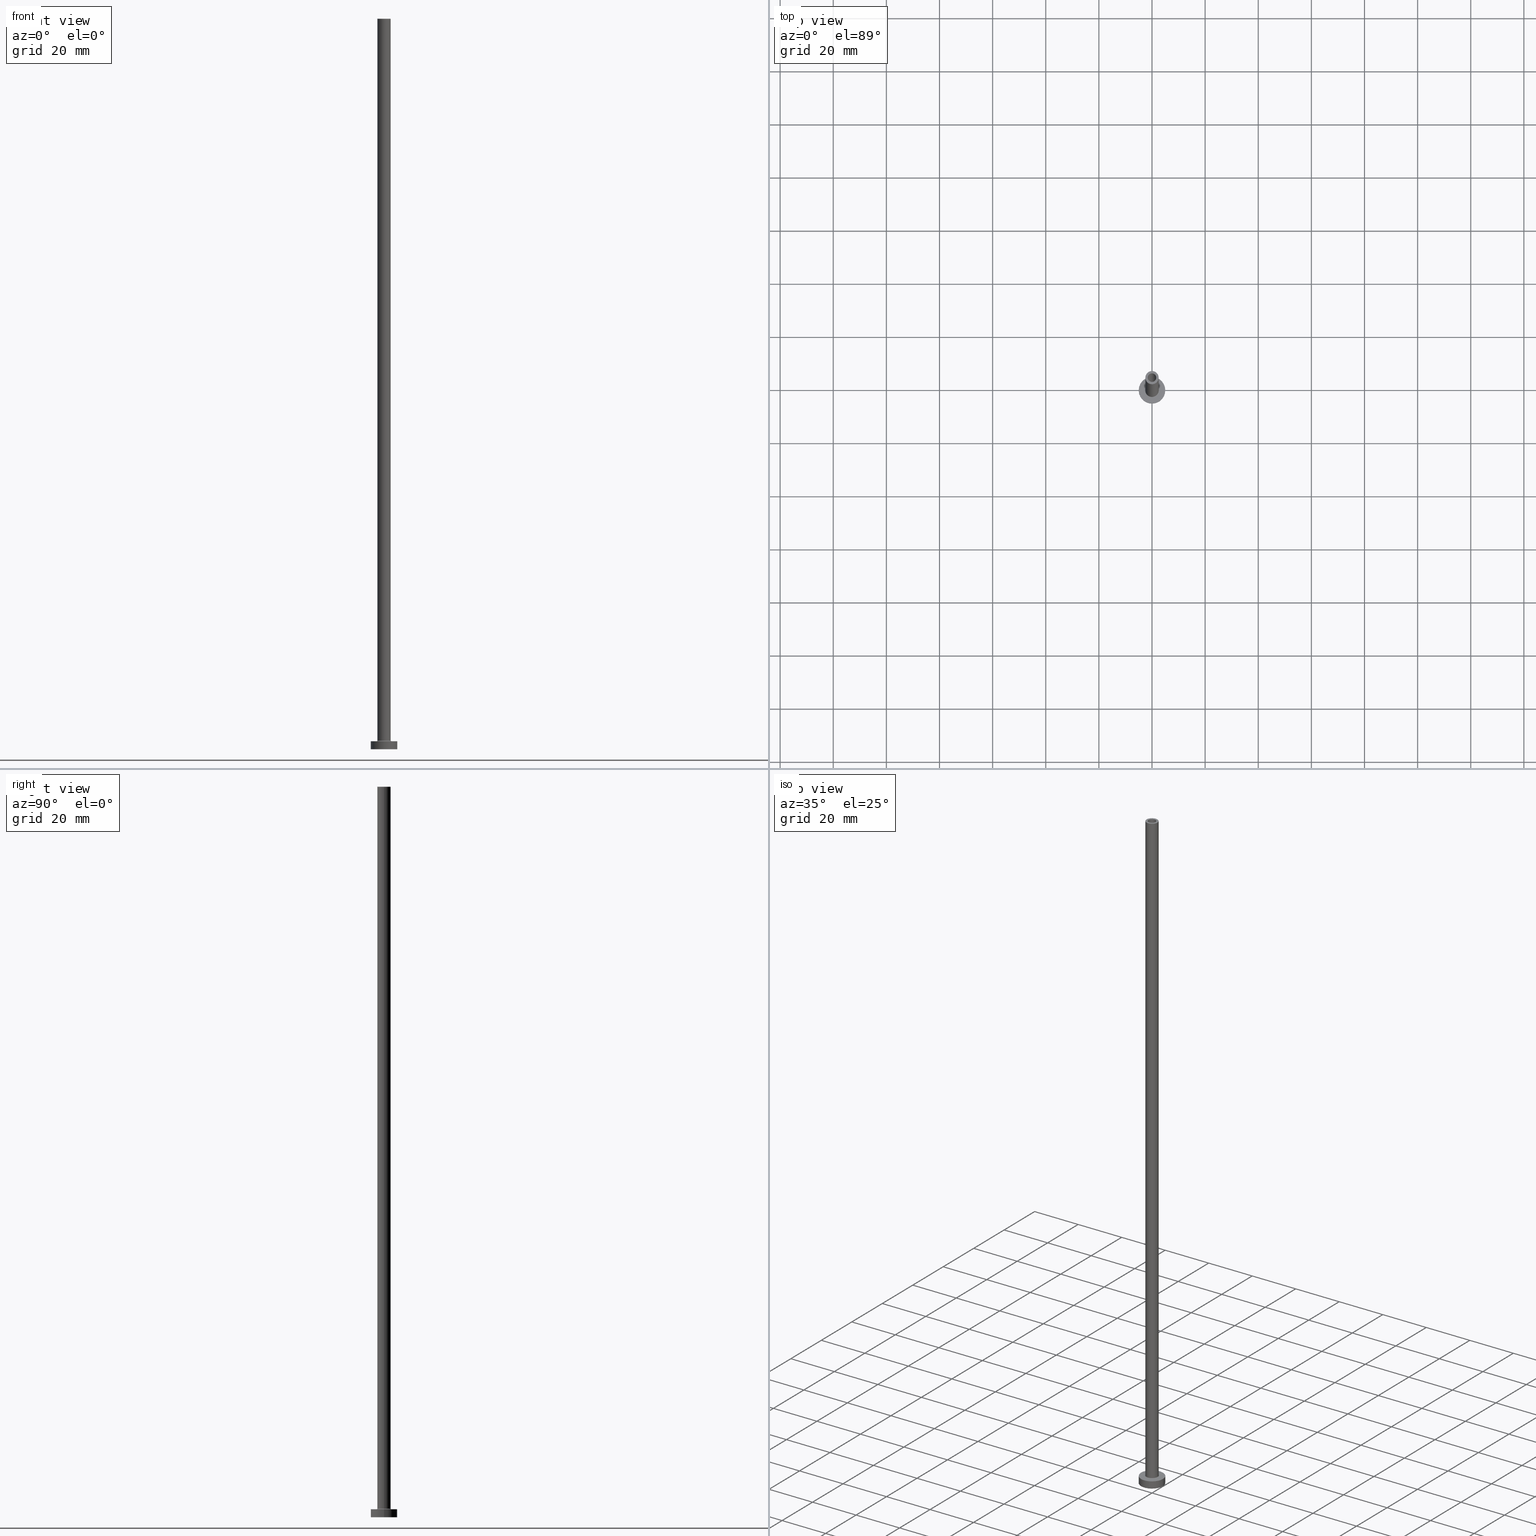
[diagram: canonical four-view strip — front | top / right | iso, engineering-drawing reading convention]
A machine part, canonical four-view strip (front | top / right | iso — engineering-drawing reading convention). The complete STEP part file that produces these views, byte-faithful:
ISO-10303-21;
HEADER;
FILE_DESCRIPTION (( 'STEP AP203' ),
    '1' );
FILE_NAME ('d8c4.STEP',
    '2023-02-13T17:55:53',
    ( '' ),
    ( '' ),
    'SwSTEP 2.0',
    'SolidWorks 2019',
    '' );
FILE_SCHEMA (( 'CONFIG_CONTROL_DESIGN' ));
ENDSEC;

DATA;
#1 = ORIENTED_EDGE ( 'NONE', *, *, #213, .T. ) ;
#2 = LINE ( 'NONE', #153, #8 ) ;
#3 = EDGE_LOOP ( 'NONE', ( #435, #387 ) ) ;
#4 = CIRCLE ( 'NONE', #334, 2.799999999999999822 ) ;
#5 = CC_DESIGN_DATE_AND_TIME_ASSIGNMENT ( #384, #97, ( #174 ) ) ;
#6 = DIRECTION ( 'NONE',  ( -0.000000000000000000, -0.000000000000000000, -1.000000000000000000 ) ) ;
#7 = ORIENTED_EDGE ( 'NONE', *, *, #382, .F. ) ;
#8 = VECTOR ( 'NONE', #118, 1000.000000000000000 ) ;
#9 = EDGE_CURVE ( 'NONE', #297, #353, #235, .T. ) ;
#10 = ORIENTED_EDGE ( 'NONE', *, *, #416, .F. ) ;
#11 = FACE_OUTER_BOUND ( 'NONE', #217, .T. ) ;
#12 = DIRECTION ( 'NONE',  ( 0.000000000000000000, 0.000000000000000000, 1.000000000000000000 ) ) ;
#13 = CARTESIAN_POINT ( 'NONE',  ( 1.600000000000000089, 1.959434878635764737E-16, 275.0000000000000000 ) ) ;
#14 = DATE_TIME_ROLE ( 'classification_date' ) ;
#15 = ADVANCED_FACE ( 'NONE', ( #11 ), #199, .F. ) ;
#16 = DATE_AND_TIME ( #377, #178 ) ;
#17 = AXIS2_PLACEMENT_3D ( 'NONE', #146, #74, #114 ) ;
#18 = CIRCLE ( 'NONE', #403, 5.000000000000000000 ) ;
#19 = CARTESIAN_POINT ( 'NONE',  ( 0.000000000000000000, 0.000000000000000000, 275.0000000000000000 ) ) ;
#20 = DIRECTION ( 'NONE',  ( -1.000000000000000000, 0.000000000000000000, 0.000000000000000000 ) ) ;
#21 = DIRECTION ( 'NONE',  ( 1.224646799147353207E-16, 1.000000000000000000, -0.000000000000000000 ) ) ;
#22 = CARTESIAN_POINT ( 'NONE',  ( -5.000000000000000000, 0.000000000000000000, 3.000000000000000000 ) ) ;
#23 =( GEOMETRIC_REPRESENTATION_CONTEXT ( 3 ) GLOBAL_UNCERTAINTY_ASSIGNED_CONTEXT ( ( #367 ) ) GLOBAL_UNIT_ASSIGNED_CONTEXT ( ( #197, #408, #301 ) ) REPRESENTATION_CONTEXT ( 'NONE', 'WORKASPACE' ) );
#24 = FACE_BOUND ( 'NONE', #3, .T. ) ;
#25 = ORIENTED_EDGE ( 'NONE', *, *, #327, .T. ) ;
#26 = VERTEX_POINT ( 'NONE', #191 ) ;
#27 = EDGE_CURVE ( 'NONE', #28, #398, #391, .T. ) ;
#28 = VERTEX_POINT ( 'NONE', #190 ) ;
#29 = CIRCLE ( 'NONE', #386, 1.600000000000000089 ) ;
#30 = DATE_AND_TIME ( #189, #63 ) ;
#31 = DIRECTION ( 'NONE',  ( -0.000000000000000000, -0.000000000000000000, -1.000000000000000000 ) ) ;
#32 = ORIENTED_EDGE ( 'NONE', *, *, #308, .T. ) ;
#33 = FACE_OUTER_BOUND ( 'NONE', #147, .T. ) ;
#34 = ADVANCED_FACE ( 'NONE', ( #394, #340 ), #180, .T. ) ;
#35 = ORIENTED_EDGE ( 'NONE', *, *, #213, .F. ) ;
#36 = ORIENTED_EDGE ( 'NONE', *, *, #27, .F. ) ;
#37 = ORIENTED_EDGE ( 'NONE', *, *, #248, .F. ) ;
#38 = AXIS2_PLACEMENT_3D ( 'NONE', #45, #194, #233 ) ;
#39 = DIRECTION ( 'NONE',  ( 0.000000000000000000, 0.000000000000000000, 1.000000000000000000 ) ) ;
#40 = CIRCLE ( 'NONE', #457, 5.000000000000000000 ) ;
#41 = LINE ( 'NONE', #120, #268 ) ;
#42 = ORIENTED_EDGE ( 'NONE', *, *, #144, .T. ) ;
#43 = DIRECTION ( 'NONE',  ( 1.000000000000000000, 0.000000000000000000, 0.000000000000000000 ) ) ;
#44 = EDGE_LOOP ( 'NONE', ( #262, #356, #1, #383 ) ) ;
#45 = CARTESIAN_POINT ( 'NONE',  ( 0.000000000000000000, 0.000000000000000000, 275.0000000000000000 ) ) ;
#46 = DIRECTION ( 'NONE',  ( -1.000000000000000000, 0.000000000000000000, 0.000000000000000000 ) ) ;
#47 = DIRECTION ( 'NONE',  ( -0.000000000000000000, -0.000000000000000000, -1.000000000000000000 ) ) ;
#48 = DIRECTION ( 'NONE',  ( 1.000000000000000000, 0.000000000000000000, 0.000000000000000000 ) ) ;
#49 = APPROVAL_STATUS ( 'not_yet_approved' ) ;
#50 = FACE_OUTER_BOUND ( 'NONE', #129, .T. ) ;
#51 = EDGE_CURVE ( 'NONE', #110, #392, #168, .T. ) ;
#52 = DIRECTION ( 'NONE',  ( 1.000000000000000000, 0.000000000000000000, 0.000000000000000000 ) ) ;
#53 = ORIENTED_EDGE ( 'NONE', *, *, #454, .F. ) ;
#54 = AXIS2_PLACEMENT_3D ( 'NONE', #229, #39, #152 ) ;
#55 = CIRCLE ( 'NONE', #123, 2.500000000000000000 ) ;
#56 = SECURITY_CLASSIFICATION ( '', '', #72 ) ;
#57 = CALENDAR_DATE ( 2023, 13, 2 ) ;
#58 = ADVANCED_FACE ( 'NONE', ( #73 ), #267, .F. ) ;
#59 = VERTEX_POINT ( 'NONE', #109 ) ;
#60 = DIRECTION ( 'NONE',  ( 1.000000000000000000, 0.000000000000000000, -0.000000000000000000 ) ) ;
#61 = PERSON_AND_ORGANIZATION ( #211, #381 ) ;
#62 = CARTESIAN_POINT ( 'NONE',  ( -2.500000000000000000, 0.000000000000000000, 275.0000000000000000 ) ) ;
#63 = LOCAL_TIME ( 18, 55, 53.00000000000000000, #112 ) ;
#64 = DIRECTION ( 'NONE',  ( 0.000000000000000000, 0.000000000000000000, -1.000000000000000000 ) ) ;
#65 = AXIS2_PLACEMENT_3D ( 'NONE', #329, #399, #430 ) ;
#66 = DIRECTION ( 'NONE',  ( -1.000000000000000000, 0.000000000000000000, 0.000000000000000000 ) ) ;
#67 = AXIS2_PLACEMENT_3D ( 'NONE', #261, #31, #226 ) ;
#68 = EDGE_LOOP ( 'NONE', ( #79, #193 ) ) ;
#69 = EDGE_LOOP ( 'NONE', ( #298, #404 ) ) ;
#70 = EDGE_CURVE ( 'NONE', #181, #149, #411, .T. ) ;
#71 = ORIENTED_EDGE ( 'NONE', *, *, #389, .F. ) ;
#72 = SECURITY_CLASSIFICATION_LEVEL ( 'unclassified' ) ;
#73 = FACE_OUTER_BOUND ( 'NONE', #320, .T. ) ;
#74 = DIRECTION ( 'NONE',  ( 0.000000000000000000, 0.000000000000000000, 1.000000000000000000 ) ) ;
#75 = ORIENTED_EDGE ( 'NONE', *, *, #198, .T. ) ;
#76 = DIRECTION ( 'NONE',  ( -0.000000000000000000, -0.000000000000000000, -1.000000000000000000 ) ) ;
#77 = TOROIDAL_SURFACE ( 'NONE', #274, 2.799999999999999822, 0.2999999999999999889 ) ;
#78 = DIRECTION ( 'NONE',  ( -0.000000000000000000, -0.000000000000000000, -1.000000000000000000 ) ) ;
#79 = ORIENTED_EDGE ( 'NONE', *, *, #70, .F. ) ;
#80 = EDGE_CURVE ( 'NONE', #26, #388, #2, .T. ) ;
#81 = DIRECTION ( 'NONE',  ( 0.000000000000000000, 0.000000000000000000, -1.000000000000000000 ) ) ;
#82 = DIRECTION ( 'NONE',  ( 1.000000000000000000, 0.000000000000000000, 0.000000000000000000 ) ) ;
#83 = ORIENTED_EDGE ( 'NONE', *, *, #51, .T. ) ;
#84 = PERSON_AND_ORGANIZATION ( #211, #381 ) ;
#85 = TOROIDAL_SURFACE ( 'NONE', #409, 2.799999999999999822, 0.2999999999999999889 ) ;
#86 = CARTESIAN_POINT ( 'NONE',  ( -1.600000000000000089, 0.000000000000000000, 275.0000000000000000 ) ) ;
#87 = SHAPE_DEFINITION_REPRESENTATION ( #355, #312 ) ;
#88 = PRODUCT_DEFINITION_FORMATION_WITH_SPECIFIED_SOURCE ( 'LIBOVOLN�', '', #219, .NOT_KNOWN. ) ;
#89 = EDGE_CURVE ( 'NONE', #366, #59, #257, .T. ) ;
#90 = DIRECTION ( 'NONE',  ( 1.000000000000000000, 0.000000000000000000, 0.000000000000000000 ) ) ;
#91 = CARTESIAN_POINT ( 'NONE',  ( 0.000000000000000000, 0.000000000000000000, 230.0000000000000284 ) ) ;
#92 = EDGE_CURVE ( 'NONE', #421, #176, #417, .T. ) ;
#93 = CIRCLE ( 'NONE', #187, 1.600000000000000089 ) ;
#94 = APPROVAL_PERSON_ORGANIZATION ( #84, #369, #271 ) ;
#95 = CARTESIAN_POINT ( 'NONE',  ( 2.500000000000000000, 3.061616997868383141E-16, 275.0000000000000000 ) ) ;
#96 = EDGE_LOOP ( 'NONE', ( #75, #42 ) ) ;
#97 = DATE_TIME_ROLE ( 'creation_date' ) ;
#98 = PLANE ( 'NONE',  #445 ) ;
#99 = CLOSED_SHELL ( 'NONE', ( #459, #15, #177, #188, #276, #108, #303, #375, #127, #34, #121, #58, #354, #208 ) ) ;
#100 = CARTESIAN_POINT ( 'NONE',  ( 0.000000000000000000, 0.000000000000000000, 3.000000000000000000 ) ) ;
#101 = ORIENTED_EDGE ( 'NONE', *, *, #448, .F. ) ;
#102 = LINE ( 'NONE', #254, #162 ) ;
#103 = CC_DESIGN_PERSON_AND_ORGANIZATION_ASSIGNMENT ( #143, #179, ( #88 ) ) ;
#104 = APPROVAL_PERSON_ORGANIZATION ( #61, #227, #283 ) ;
#105 = ORIENTED_EDGE ( 'NONE', *, *, #385, .T. ) ;
#106 = ORIENTED_EDGE ( 'NONE', *, *, #138, .T. ) ;
#107 = ORIENTED_EDGE ( 'NONE', *, *, #361, .F. ) ;
#108 = ADVANCED_FACE ( 'NONE', ( #150 ), #332, .T. ) ;
#109 = CARTESIAN_POINT ( 'NONE',  ( -2.500000000000000000, 0.000000000000000000, 3.300000000000025135 ) ) ;
#110 = VERTEX_POINT ( 'NONE', #299 ) ;
#111 = ORIENTED_EDGE ( 'NONE', *, *, #70, .T. ) ;
#112 = COORDINATED_UNIVERSAL_TIME_OFFSET ( 1, 0, .AHEAD. ) ;
#113 = DIRECTION ( 'NONE',  ( 1.000000000000000000, 0.000000000000000000, 0.000000000000000000 ) ) ;
#114 = DIRECTION ( 'NONE',  ( 1.000000000000000000, 0.000000000000000000, 0.000000000000000000 ) ) ;
#115 = EDGE_LOOP ( 'NONE', ( #117, #370, #214, #36 ) ) ;
#116 = CARTESIAN_POINT ( 'NONE',  ( 0.000000000000000000, 0.000000000000000000, 3.000000000000000000 ) ) ;
#117 = ORIENTED_EDGE ( 'NONE', *, *, #308, .F. ) ;
#118 = DIRECTION ( 'NONE',  ( -0.000000000000000000, -0.000000000000000000, -1.000000000000000000 ) ) ;
#119 = VECTOR ( 'NONE', #47, 1000.000000000000000 ) ;
#120 = CARTESIAN_POINT ( 'NONE',  ( 2.500000000000000000, 3.061616997868383141E-16, 275.0000000000000000 ) ) ;
#121 = ADVANCED_FACE ( 'NONE', ( #33 ), #85, .F. ) ;
#122 = ORIENTED_EDGE ( 'NONE', *, *, #448, .T. ) ;
#123 = AXIS2_PLACEMENT_3D ( 'NONE', #167, #314, #281 ) ;
#124 = CC_DESIGN_APPROVAL ( #227, ( #88 ) ) ;
#125 = CARTESIAN_POINT ( 'NONE',  ( -1.750000000000000000, 0.000000000000000000, 0.000000000000000000 ) ) ;
#126 = APPROVAL_STATUS ( 'not_yet_approved' ) ;
#127 = ADVANCED_FACE ( 'NONE', ( #295 ), #232, .T. ) ;
#128 = APPLICATION_PROTOCOL_DEFINITION ( 'international standard', 'config_control_design', 1994, #204 ) ;
#129 = EDGE_LOOP ( 'NONE', ( #71, #395, #37, #266 ) ) ;
#130 = CARTESIAN_POINT ( 'NONE',  ( 0.000000000000000000, 0.000000000000000000, 3.000000000000000000 ) ) ;
#131 = PERSON_AND_ORGANIZATION_ROLE ( 'creator' ) ;
#132 = FACE_OUTER_BOUND ( 'NONE', #231, .T. ) ;
#133 = CARTESIAN_POINT ( 'NONE',  ( 0.000000000000000000, 0.000000000000000000, 3.000000000000000000 ) ) ;
#134 = VECTOR ( 'NONE', #202, 1000.000000000000000 ) ;
#135 = CIRCLE ( 'NONE', #286, 1.750000000000000000 ) ;
#136 = DIRECTION ( 'NONE',  ( 1.000000000000000000, 0.000000000000000000, 0.000000000000000000 ) ) ;
#137 = CARTESIAN_POINT ( 'NONE',  ( 0.000000000000000000, 0.000000000000000000, 0.000000000000000000 ) ) ;
#138 = EDGE_CURVE ( 'NONE', #353, #388, #402, .T. ) ;
#139 = CARTESIAN_POINT ( 'NONE',  ( 0.000000000000000000, 0.000000000000000000, 0.000000000000000000 ) ) ;
#140 = FACE_BOUND ( 'NONE', #69, .T. ) ;
#141 = ORIENTED_EDGE ( 'NONE', *, *, #389, .T. ) ;
#142 = AXIS2_PLACEMENT_3D ( 'NONE', #130, #453, #280 ) ;
#143 = PERSON_AND_ORGANIZATION ( #211, #381 ) ;
#144 = EDGE_CURVE ( 'NONE', #260, #366, #343, .T. ) ;
#145 = CARTESIAN_POINT ( 'NONE',  ( 0.000000000000000000, 0.000000000000000000, 275.0000000000000000 ) ) ;
#146 = CARTESIAN_POINT ( 'NONE',  ( 0.000000000000000000, 0.000000000000000000, 3.000000000000000000 ) ) ;
#147 = EDGE_LOOP ( 'NONE', ( #107, #35, #83, #368 ) ) ;
#148 = DIRECTION ( 'NONE',  ( 0.000000000000000000, 0.000000000000000000, 1.000000000000000000 ) ) ;
#149 = VERTEX_POINT ( 'NONE', #13 ) ;
#150 = FACE_OUTER_BOUND ( 'NONE', #425, .T. ) ;
#151 = ORIENTED_EDGE ( 'NONE', *, *, #159, .F. ) ;
#152 = DIRECTION ( 'NONE',  ( 1.000000000000000000, 0.000000000000000000, 0.000000000000000000 ) ) ;
#153 = CARTESIAN_POINT ( 'NONE',  ( 5.000000000000000000, 6.123233995736766282E-16, 3.000000000000000000 ) ) ;
#154 = CC_DESIGN_DATE_AND_TIME_ASSIGNMENT ( #443, #14, ( #56 ) ) ;
#155 = AXIS2_PLACEMENT_3D ( 'NONE', #424, #220, #265 ) ;
#156 = DIRECTION ( 'NONE',  ( 0.000000000000000000, 0.000000000000000000, 1.000000000000000000 ) ) ;
#157 = LOCAL_TIME ( 18, 55, 53.00000000000000000, #442 ) ;
#158 = CARTESIAN_POINT ( 'NONE',  ( 0.000000000000000000, 0.000000000000000000, 230.0000000000000284 ) ) ;
#159 = EDGE_CURVE ( 'NONE', #293, #421, #236, .T. ) ;
#160 = CARTESIAN_POINT ( 'NONE',  ( 0.000000000000000000, 0.000000000000000000, 3.000000000000000000 ) ) ;
#161 = DIRECTION ( 'NONE',  ( -0.000000000000000000, -0.000000000000000000, -1.000000000000000000 ) ) ;
#162 = VECTOR ( 'NONE', #64, 1000.000000000000000 ) ;
#163 = DIRECTION ( 'NONE',  ( 0.000000000000000000, 0.000000000000000000, 1.000000000000000000 ) ) ;
#164 = LOCAL_TIME ( 18, 55, 53.00000000000000000, #316 ) ;
#165 = DIRECTION ( 'NONE',  ( 0.000000000000000000, 0.000000000000000000, -1.000000000000000000 ) ) ;
#166 = CARTESIAN_POINT ( 'NONE',  ( -1.750000000000000000, 0.000000000000000000, 230.0000000000000284 ) ) ;
#167 = CARTESIAN_POINT ( 'NONE',  ( 0.000000000000000000, 0.000000000000000000, 3.300000000000025135 ) ) ;
#168 = CIRCLE ( 'NONE', #378, 0.2999999999999999334 ) ;
#169 = FACE_BOUND ( 'NONE', #358, .T. ) ;
#170 = APPROVAL_DATE_TIME ( #16, #400 ) ;
#171 = CIRCLE ( 'NONE', #456, 2.799999999999999822 ) ;
#172 = DIRECTION ( 'NONE',  ( 0.000000000000000000, 0.000000000000000000, 1.000000000000000000 ) ) ;
#173 = CARTESIAN_POINT ( 'NONE',  ( -1.750000000000000000, 0.000000000000000000, 234.9497474683058726 ) ) ;
#174 = PRODUCT_DEFINITION ( 'NEZN�M�', '', #88, #422 ) ;
#175 = CYLINDRICAL_SURFACE ( 'NONE', #321, 5.000000000000000000 ) ;
#176 = VERTEX_POINT ( 'NONE', #125 ) ;
#177 = ADVANCED_FACE ( 'NONE', ( #50 ), #77, .F. ) ;
#178 = LOCAL_TIME ( 18, 55, 53.00000000000000000, #241 ) ;
#179 = PERSON_AND_ORGANIZATION_ROLE ( 'creator' ) ;
#180 = PLANE ( 'NONE',  #155 ) ;
#181 = VERTEX_POINT ( 'NONE', #86 ) ;
#182 = CARTESIAN_POINT ( 'NONE',  ( 0.000000000000000000, 0.000000000000000000, 3.300000000000025135 ) ) ;
#183 = CARTESIAN_POINT ( 'NONE',  ( 0.000000000000000000, 0.000000000000000000, 3.300000000000025135 ) ) ;
#184 = ORIENTED_EDGE ( 'NONE', *, *, #9, .T. ) ;
#185 = ORIENTED_EDGE ( 'NONE', *, *, #385, .F. ) ;
#186 = DIRECTION ( 'NONE',  ( -1.000000000000000000, 0.000000000000000000, 0.000000000000000000 ) ) ;
#187 = AXIS2_PLACEMENT_3D ( 'NONE', #158, #407, #48 ) ;
#188 = ADVANCED_FACE ( 'NONE', ( #205 ), #348, .T. ) ;
#189 = CALENDAR_DATE ( 2023, 13, 2 ) ;
#190 = CARTESIAN_POINT ( 'NONE',  ( 1.600000000000000089, 1.959434878635764737E-16, 230.0000000000000284 ) ) ;
#191 = CARTESIAN_POINT ( 'NONE',  ( 5.000000000000000000, 6.123233995736766282E-16, 3.000000000000000000 ) ) ;
#192 = DIRECTION ( 'NONE',  ( 1.000000000000000000, 0.000000000000000000, 0.000000000000000000 ) ) ;
#193 = ORIENTED_EDGE ( 'NONE', *, *, #294, .F. ) ;
#194 = DIRECTION ( 'NONE',  ( 0.000000000000000000, 0.000000000000000000, 1.000000000000000000 ) ) ;
#195 = AXIS2_PLACEMENT_3D ( 'NONE', #258, #290, #223 ) ;
#196 = CALENDAR_DATE ( 2023, 13, 2 ) ;
#197 =( LENGTH_UNIT ( ) NAMED_UNIT ( * ) SI_UNIT ( .MILLI., .METRE. ) );
#198 = EDGE_CURVE ( 'NONE', #366, #260, #200, .T. ) ;
#199 = CYLINDRICAL_SURFACE ( 'NONE', #434, 1.750000000000000000 ) ;
#200 = CIRCLE ( 'NONE', #452, 2.500000000000000000 ) ;
#201 = LOCAL_TIME ( 18, 55, 53.00000000000000000, #436 ) ;
#202 = DIRECTION ( 'NONE',  ( 0.000000000000000000, 0.000000000000000000, -1.000000000000000000 ) ) ;
#203 = DATE_AND_TIME ( #273, #157 ) ;
#204 = APPLICATION_CONTEXT ( 'configuration controlled 3d designs of mechanical parts and assemblies' ) ;
#205 = FACE_OUTER_BOUND ( 'NONE', #44, .T. ) ;
#206 = DIRECTION ( 'NONE',  ( 1.000000000000000000, 0.000000000000000000, 0.000000000000000000 ) ) ;
#207 = AXIS2_PLACEMENT_3D ( 'NONE', #183, #300, #426 ) ;
#208 = ADVANCED_FACE ( 'NONE', ( #272 ), #255, .F. ) ;
#209 = APPROVAL_PERSON_ORGANIZATION ( #275, #400, #410 ) ;
#210 = CARTESIAN_POINT ( 'NONE',  ( 0.000000000000000000, 0.000000000000000000, 275.0000000000000000 ) ) ;
#211 = PERSON ( 'NEUR�EN�', 'NEUR�EN�', 'NEUR�EN�', ('NEUR�EN�'), ('NEUR�EN�'), ('NEUR�EN�') ) ;
#212 = CARTESIAN_POINT ( 'NONE',  ( 0.000000000000000000, 0.000000000000000000, 275.0000000000000000 ) ) ;
#213 = EDGE_CURVE ( 'NONE', #110, #59, #55, .T. ) ;
#214 = ORIENTED_EDGE ( 'NONE', *, *, #382, .T. ) ;
#215 = CIRCLE ( 'NONE', #374, 1.750000000000000000 ) ;
#216 = LINE ( 'NONE', #173, #437 ) ;
#217 = EDGE_LOOP ( 'NONE', ( #122, #331, #330, #433 ) ) ;
#218 = AXIS2_PLACEMENT_3D ( 'NONE', #145, #364, #113 ) ;
#219 = PRODUCT ( 'd8c4', 'd8c4', '', ( #438 ) ) ;
#220 = DIRECTION ( 'NONE',  ( 0.000000000000000000, 0.000000000000000000, 1.000000000000000000 ) ) ;
#221 = EDGE_CURVE ( 'NONE', #176, #421, #215, .T. ) ;
#222 = ORIENTED_EDGE ( 'NONE', *, *, #89, .T. ) ;
#223 = DIRECTION ( 'NONE',  ( 1.000000000000000000, 0.000000000000000000, 0.000000000000000000 ) ) ;
#224 = ORIENTED_EDGE ( 'NONE', *, *, #347, .F. ) ;
#225 = PERSON_AND_ORGANIZATION ( #211, #381 ) ;
#226 = DIRECTION ( 'NONE',  ( -1.000000000000000000, 0.000000000000000000, 0.000000000000000000 ) ) ;
#227 = APPROVAL ( #351, 'NEUR�EN�' ) ;
#228 = AXIS2_PLACEMENT_3D ( 'NONE', #390, #289, #186 ) ;
#229 = CARTESIAN_POINT ( 'NONE',  ( 0.000000000000000000, 0.000000000000000000, 0.000000000000000000 ) ) ;
#230 = CIRCLE ( 'NONE', #17, 5.000000000000000000 ) ;
#231 = EDGE_LOOP ( 'NONE', ( #336, #270 ) ) ;
#232 = CYLINDRICAL_SURFACE ( 'NONE', #67, 2.500000000000000000 ) ;
#233 = DIRECTION ( 'NONE',  ( 1.000000000000000000, 0.000000000000000000, 0.000000000000000000 ) ) ;
#234 = EDGE_CURVE ( 'NONE', #342, #176, #216, .T. ) ;
#235 = LINE ( 'NONE', #372, #119 ) ;
#236 = LINE ( 'NONE', #441, #134 ) ;
#237 = DIRECTION ( 'NONE',  ( 0.000000000000000000, 0.000000000000000000, 1.000000000000000000 ) ) ;
#238 = CC_DESIGN_APPROVAL ( #400, ( #174 ) ) ;
#239 = PERSON_AND_ORGANIZATION ( #211, #381 ) ;
#240 = ORIENTED_EDGE ( 'NONE', *, *, #440, .T. ) ;
#241 = COORDINATED_UNIVERSAL_TIME_OFFSET ( 1, 0, .AHEAD. ) ;
#242 = DIRECTION ( 'NONE',  ( -0.000000000000000000, -0.000000000000000000, -1.000000000000000000 ) ) ;
#243 = ORIENTED_EDGE ( 'NONE', *, *, #221, .T. ) ;
#244 = CC_DESIGN_PERSON_AND_ORGANIZATION_ASSIGNMENT ( #225, #337, ( #56 ) ) ;
#245 = CARTESIAN_POINT ( 'NONE',  ( 0.000000000000000000, 0.000000000000000000, 0.000000000000000000 ) ) ;
#246 = CARTESIAN_POINT ( 'NONE',  ( 1.750000000000000000, 2.143131898507868297E-16, 230.0000000000000284 ) ) ;
#247 = DIRECTION ( 'NONE',  ( 0.000000000000000000, 0.000000000000000000, -1.000000000000000000 ) ) ;
#248 = EDGE_CURVE ( 'NONE', #392, #393, #4, .T. ) ;
#249 = CARTESIAN_POINT ( 'NONE',  ( -2.799999999999999822, 3.429011037612588783E-16, 3.300000000000025135 ) ) ;
#250 = FACE_OUTER_BOUND ( 'NONE', #446, .T. ) ;
#251 = DIRECTION ( 'NONE',  ( -1.000000000000000000, 1.224646799147353207E-16, 0.000000000000000000 ) ) ;
#252 = PLANE ( 'NONE',  #142 ) ;
#253 = AXIS2_PLACEMENT_3D ( 'NONE', #249, #21, #251 ) ;
#254 = CARTESIAN_POINT ( 'NONE',  ( -1.600000000000000089, 0.000000000000000000, 275.0000000000000000 ) ) ;
#255 = CYLINDRICAL_SURFACE ( 'NONE', #359, 1.600000000000000089 ) ;
#256 = ORIENTED_EDGE ( 'NONE', *, *, #234, .T. ) ;
#257 = LINE ( 'NONE', #360, #292 ) ;
#258 = CARTESIAN_POINT ( 'NONE',  ( 0.000000000000000000, 0.000000000000000000, 0.000000000000000000 ) ) ;
#259 = CARTESIAN_POINT ( 'NONE',  ( -1.600000000000000089, 0.000000000000000000, 230.0000000000000284 ) ) ;
#260 = VERTEX_POINT ( 'NONE', #95 ) ;
#261 = CARTESIAN_POINT ( 'NONE',  ( 0.000000000000000000, 0.000000000000000000, 275.0000000000000000 ) ) ;
#262 = ORIENTED_EDGE ( 'NONE', *, *, #144, .F. ) ;
#263 = CC_DESIGN_PERSON_AND_ORGANIZATION_ASSIGNMENT ( #239, #376, ( #219 ) ) ;
#264 = ORIENTED_EDGE ( 'NONE', *, *, #406, .F. ) ;
#265 = DIRECTION ( 'NONE',  ( 1.000000000000000000, 0.000000000000000000, -0.000000000000000000 ) ) ;
#266 = ORIENTED_EDGE ( 'NONE', *, *, #51, .F. ) ;
#267 = CYLINDRICAL_SURFACE ( 'NONE', #228, 1.750000000000000000 ) ;
#268 = VECTOR ( 'NONE', #161, 1000.000000000000000 ) ;
#269 = AXIS2_PLACEMENT_3D ( 'NONE', #345, #12, #305 ) ;
#270 = ORIENTED_EDGE ( 'NONE', *, *, #440, .F. ) ;
#271 = APPROVAL_ROLE ( '' ) ;
#272 = FACE_OUTER_BOUND ( 'NONE', #115, .T. ) ;
#273 = CALENDAR_DATE ( 2023, 13, 2 ) ;
#274 = AXIS2_PLACEMENT_3D ( 'NONE', #346, #237, #307 ) ;
#275 = PERSON_AND_ORGANIZATION ( #211, #381 ) ;
#276 = ADVANCED_FACE ( 'NONE', ( #250 ), #175, .T. ) ;
#277 = CARTESIAN_POINT ( 'NONE',  ( 0.000000000000000000, 0.000000000000000000, 275.0000000000000000 ) ) ;
#278 = DIRECTION ( 'NONE',  ( -1.000000000000000000, 0.000000000000000000, 0.000000000000000000 ) ) ;
#279 = DIRECTION ( 'NONE',  ( -1.000000000000000000, 0.000000000000000000, 0.000000000000000000 ) ) ;
#280 = DIRECTION ( 'NONE',  ( 1.000000000000000000, 0.000000000000000000, -0.000000000000000000 ) ) ;
#281 = DIRECTION ( 'NONE',  ( 1.000000000000000000, 0.000000000000000000, 0.000000000000000000 ) ) ;
#282 = DIRECTION ( 'NONE',  ( -0.000000000000000000, -0.000000000000000000, -1.000000000000000000 ) ) ;
#283 = APPROVAL_ROLE ( '' ) ;
#284 = DIRECTION ( 'NONE',  ( 0.000000000000000000, 0.000000000000000000, 1.000000000000000000 ) ) ;
#285 = CIRCLE ( 'NONE', #207, 2.500000000000000000 ) ;
#286 = AXIS2_PLACEMENT_3D ( 'NONE', #91, #379, #192 ) ;
#287 = EDGE_LOOP ( 'NONE', ( #101, #53 ) ) ;
#288 = CC_DESIGN_PERSON_AND_ORGANIZATION_ASSIGNMENT ( #450, #131, ( #174 ) ) ;
#289 = DIRECTION ( 'NONE',  ( 0.000000000000000000, 0.000000000000000000, -1.000000000000000000 ) ) ;
#290 = DIRECTION ( 'NONE',  ( -0.000000000000000000, -0.000000000000000000, -1.000000000000000000 ) ) ;
#291 = ORIENTED_EDGE ( 'NONE', *, *, #80, .T. ) ;
#292 = VECTOR ( 'NONE', #6, 1000.000000000000000 ) ;
#293 = VERTEX_POINT ( 'NONE', #246 ) ;
#294 = EDGE_CURVE ( 'NONE', #149, #181, #29, .T. ) ;
#295 = FACE_OUTER_BOUND ( 'NONE', #296, .T. ) ;
#296 = EDGE_LOOP ( 'NONE', ( #264, #333, #222, #141 ) ) ;
#297 = VERTEX_POINT ( 'NONE', #22 ) ;
#298 = ORIENTED_EDGE ( 'NONE', *, *, #347, .T. ) ;
#299 = CARTESIAN_POINT ( 'NONE',  ( 2.500000000000000000, 3.061616997868383141E-16, 3.300000000000025135 ) ) ;
#300 = DIRECTION ( 'NONE',  ( 0.000000000000000000, 0.000000000000000000, 1.000000000000000000 ) ) ;
#301 =( NAMED_UNIT ( * ) SI_UNIT ( $, .STERADIAN. ) SOLID_ANGLE_UNIT ( ) );
#302 = VECTOR ( 'NONE', #317, 1000.000000000000000 ) ;
#303 = ADVANCED_FACE ( 'NONE', ( #169, #315 ), #252, .T. ) ;
#304 = DIRECTION ( 'NONE',  ( 0.000000000000000000, 0.000000000000000000, 1.000000000000000000 ) ) ;
#305 = DIRECTION ( 'NONE',  ( 1.000000000000000000, 0.000000000000000000, 0.000000000000000000 ) ) ;
#306 = CARTESIAN_POINT ( 'NONE',  ( -5.000000000000000000, 0.000000000000000000, 0.000000000000000000 ) ) ;
#307 = DIRECTION ( 'NONE',  ( 1.000000000000000000, 0.000000000000000000, 0.000000000000000000 ) ) ;
#308 = EDGE_CURVE ( 'NONE', #149, #28, #415, .T. ) ;
#309 = AXIS2_PLACEMENT_3D ( 'NONE', #139, #284, #418 ) ;
#310 = CARTESIAN_POINT ( 'NONE',  ( 0.000000000000000000, 0.000000000000000000, 230.0000000000000284 ) ) ;
#311 = DIRECTION ( 'NONE',  ( -0.000000000000000000, -0.000000000000000000, -1.000000000000000000 ) ) ;
#312 = ADVANCED_BREP_SHAPE_REPRESENTATION ( 'd8c4', ( #460, #269 ), #23 ) ;
#313 = DIRECTION ( 'NONE',  ( 1.000000000000000000, 0.000000000000000000, 0.000000000000000000 ) ) ;
#314 = DIRECTION ( 'NONE',  ( 0.000000000000000000, 0.000000000000000000, 1.000000000000000000 ) ) ;
#315 = FACE_OUTER_BOUND ( 'NONE', #363, .T. ) ;
#316 = COORDINATED_UNIVERSAL_TIME_OFFSET ( 1, 0, .AHEAD. ) ;
#317 = DIRECTION ( 'NONE',  ( 0.000000000000000000, 0.000000000000000000, -1.000000000000000000 ) ) ;
#318 = PLANE ( 'NONE',  #309 ) ;
#319 = CC_DESIGN_PERSON_AND_ORGANIZATION_ASSIGNMENT ( #325, #396, ( #88 ) ) ;
#320 = EDGE_LOOP ( 'NONE', ( #151, #423, #256, #243 ) ) ;
#321 = AXIS2_PLACEMENT_3D ( 'NONE', #133, #311, #279 ) ;
#322 = CC_DESIGN_APPROVAL ( #369, ( #56 ) ) ;
#323 = CARTESIAN_POINT ( 'NONE',  ( 2.799999999999999822, 0.000000000000000000, 3.000000000000012434 ) ) ;
#324 = DIRECTION ( 'NONE',  ( 0.000000000000000000, 0.000000000000000000, 1.000000000000000000 ) ) ;
#325 = PERSON_AND_ORGANIZATION ( #211, #381 ) ;
#326 = CARTESIAN_POINT ( 'NONE',  ( 2.799999999999999822, 0.000000000000000000, 3.300000000000025135 ) ) ;
#327 = EDGE_CURVE ( 'NONE', #393, #392, #171, .T. ) ;
#328 = ORIENTED_EDGE ( 'NONE', *, *, #248, .T. ) ;
#329 = CARTESIAN_POINT ( 'NONE',  ( 0.000000000000000000, 0.000000000000000000, 230.0000000000000284 ) ) ;
#330 = ORIENTED_EDGE ( 'NONE', *, *, #92, .T. ) ;
#331 = ORIENTED_EDGE ( 'NONE', *, *, #159, .T. ) ;
#332 = CYLINDRICAL_SURFACE ( 'NONE', #365, 5.000000000000000000 ) ;
#333 = ORIENTED_EDGE ( 'NONE', *, *, #198, .F. ) ;
#334 = AXIS2_PLACEMENT_3D ( 'NONE', #451, #352, #136 ) ;
#335 = CC_DESIGN_SECURITY_CLASSIFICATION ( #56, ( #88 ) ) ;
#336 = ORIENTED_EDGE ( 'NONE', *, *, #138, .F. ) ;
#337 = PERSON_AND_ORGANIZATION_ROLE ( 'classification_officer' ) ;
#338 = DIRECTION ( 'NONE',  ( 0.000000000000000000, 0.000000000000000000, -1.000000000000000000 ) ) ;
#339 = CARTESIAN_POINT ( 'NONE',  ( 5.000000000000000000, 6.123233995736766282E-16, 0.000000000000000000 ) ) ;
#340 = FACE_OUTER_BOUND ( 'NONE', #96, .T. ) ;
#341 = CYLINDRICAL_SURFACE ( 'NONE', #431, 1.600000000000000089 ) ;
#342 = VERTEX_POINT ( 'NONE', #166 ) ;
#343 = CIRCLE ( 'NONE', #38, 2.500000000000000000 ) ;
#344 = CARTESIAN_POINT ( 'NONE',  ( 0.000000000000000000, 0.000000000000000000, 234.9497474683058726 ) ) ;
#345 = CARTESIAN_POINT ( 'NONE',  ( 0.000000000000000000, 0.000000000000000000, 0.000000000000000000 ) ) ;
#346 = CARTESIAN_POINT ( 'NONE',  ( 0.000000000000000000, 0.000000000000000000, 3.300000000000025135 ) ) ;
#347 = EDGE_CURVE ( 'NONE', #398, #28, #93, .T. ) ;
#348 = CYLINDRICAL_SURFACE ( 'NONE', #429, 2.500000000000000000 ) ;
#349 = DIRECTION ( 'NONE',  ( 0.000000000000000000, 0.000000000000000000, 1.000000000000000000 ) ) ;
#350 = CARTESIAN_POINT ( 'NONE',  ( 1.600000000000000089, 1.959434878635764737E-16, 275.0000000000000000 ) ) ;
#351 = APPROVAL_STATUS ( 'not_yet_approved' ) ;
#352 = DIRECTION ( 'NONE',  ( -0.000000000000000000, -0.000000000000000000, -1.000000000000000000 ) ) ;
#353 = VERTEX_POINT ( 'NONE', #306 ) ;
#354 = ADVANCED_FACE ( 'NONE', ( #140, #414 ), #98, .F. ) ;
#355 = PRODUCT_DEFINITION_SHAPE ( 'NONE', 'NONE',  #174 ) ;
#356 = ORIENTED_EDGE ( 'NONE', *, *, #406, .T. ) ;
#357 = APPROVAL_DATE_TIME ( #30, #227 ) ;
#358 = EDGE_LOOP ( 'NONE', ( #328, #25 ) ) ;
#359 = AXIS2_PLACEMENT_3D ( 'NONE', #210, #247, #20 ) ;
#360 = CARTESIAN_POINT ( 'NONE',  ( -2.500000000000000000, 0.000000000000000000, 275.0000000000000000 ) ) ;
#361 = EDGE_CURVE ( 'NONE', #59, #393, #419, .T. ) ;
#362 = EDGE_LOOP ( 'NONE', ( #111, #32, #224, #7 ) ) ;
#363 = EDGE_LOOP ( 'NONE', ( #105, #428 ) ) ;
#364 = DIRECTION ( 'NONE',  ( 0.000000000000000000, 0.000000000000000000, 1.000000000000000000 ) ) ;
#365 = AXIS2_PLACEMENT_3D ( 'NONE', #116, #78, #401 ) ;
#366 = VERTEX_POINT ( 'NONE', #62 ) ;
#367 = UNCERTAINTY_MEASURE_WITH_UNIT (LENGTH_MEASURE( 1.000000000000000082E-05 ), #197, 'distance_accuracy_value', 'NONE');
#368 = ORIENTED_EDGE ( 'NONE', *, *, #327, .F. ) ;
#369 = APPROVAL ( #126, 'NEUR�EN�' ) ;
#370 = ORIENTED_EDGE ( 'NONE', *, *, #294, .T. ) ;
#371 = CARTESIAN_POINT ( 'NONE',  ( 1.750000000000000000, 2.143131898507868297E-16, 0.000000000000000000 ) ) ;
#372 = CARTESIAN_POINT ( 'NONE',  ( -5.000000000000000000, 0.000000000000000000, 3.000000000000000000 ) ) ;
#373 = APPROVAL_DATE_TIME ( #203, #369 ) ;
#374 = AXIS2_PLACEMENT_3D ( 'NONE', #137, #282, #313 ) ;
#375 = ADVANCED_FACE ( 'NONE', ( #24, #132 ), #318, .F. ) ;
#376 = PERSON_AND_ORGANIZATION_ROLE ( 'design_owner' ) ;
#377 = CALENDAR_DATE ( 2023, 13, 2 ) ;
#378 = AXIS2_PLACEMENT_3D ( 'NONE', #326, #461, #338 ) ;
#379 = DIRECTION ( 'NONE',  ( 0.000000000000000000, 0.000000000000000000, 1.000000000000000000 ) ) ;
#380 = CIRCLE ( 'NONE', #420, 1.750000000000000000 ) ;
#381 = ORGANIZATION ( 'NEUR�EN�', 'NEUR�EN�', '' ) ;
#382 = EDGE_CURVE ( 'NONE', #181, #398, #102, .T. ) ;
#383 = ORIENTED_EDGE ( 'NONE', *, *, #89, .F. ) ;
#384 = DATE_AND_TIME ( #57, #164 ) ;
#385 = EDGE_CURVE ( 'NONE', #297, #26, #230, .T. ) ;
#386 = AXIS2_PLACEMENT_3D ( 'NONE', #212, #349, #449 ) ;
#387 = ORIENTED_EDGE ( 'NONE', *, *, #92, .F. ) ;
#388 = VERTEX_POINT ( 'NONE', #339 ) ;
#389 = EDGE_CURVE ( 'NONE', #59, #110, #285, .T. ) ;
#390 = CARTESIAN_POINT ( 'NONE',  ( 0.000000000000000000, 0.000000000000000000, 234.9497474683058726 ) ) ;
#391 = CIRCLE ( 'NONE', #65, 1.600000000000000089 ) ;
#392 = VERTEX_POINT ( 'NONE', #323 ) ;
#393 = VERTEX_POINT ( 'NONE', #458 ) ;
#394 = FACE_BOUND ( 'NONE', #68, .T. ) ;
#395 = ORIENTED_EDGE ( 'NONE', *, *, #361, .T. ) ;
#396 = PERSON_AND_ORGANIZATION_ROLE ( 'design_supplier' ) ;
#397 = DIRECTION ( 'NONE',  ( 1.000000000000000000, 0.000000000000000000, 0.000000000000000000 ) ) ;
#398 = VERTEX_POINT ( 'NONE', #259 ) ;
#399 = DIRECTION ( 'NONE',  ( 0.000000000000000000, 0.000000000000000000, 1.000000000000000000 ) ) ;
#400 = APPROVAL ( #49, 'NEUR�EN�' ) ;
#401 = DIRECTION ( 'NONE',  ( -1.000000000000000000, 0.000000000000000000, 0.000000000000000000 ) ) ;
#402 = CIRCLE ( 'NONE', #54, 5.000000000000000000 ) ;
#403 = AXIS2_PLACEMENT_3D ( 'NONE', #245, #163, #52 ) ;
#404 = ORIENTED_EDGE ( 'NONE', *, *, #27, .T. ) ;
#405 = FACE_OUTER_BOUND ( 'NONE', #362, .T. ) ;
#406 = EDGE_CURVE ( 'NONE', #260, #110, #41, .T. ) ;
#407 = DIRECTION ( 'NONE',  ( 0.000000000000000000, 0.000000000000000000, 1.000000000000000000 ) ) ;
#408 =( NAMED_UNIT ( * ) PLANE_ANGLE_UNIT ( ) SI_UNIT ( $, .RADIAN. ) );
#409 = AXIS2_PLACEMENT_3D ( 'NONE', #182, #148, #397 ) ;
#410 = APPROVAL_ROLE ( '' ) ;
#411 = CIRCLE ( 'NONE', #218, 1.600000000000000089 ) ;
#412 = PRODUCT_RELATED_PRODUCT_CATEGORY ( 'detail', '', ( #219 ) ) ;
#413 = APPLICATION_CONTEXT ( 'configuration controlled 3d designs of mechanical parts and assemblies' ) ;
#414 = FACE_OUTER_BOUND ( 'NONE', #287, .T. ) ;
#415 = LINE ( 'NONE', #350, #302 ) ;
#416 = EDGE_CURVE ( 'NONE', #26, #297, #40, .T. ) ;
#417 = CIRCLE ( 'NONE', #195, 1.750000000000000000 ) ;
#418 = DIRECTION ( 'NONE',  ( 1.000000000000000000, 0.000000000000000000, -0.000000000000000000 ) ) ;
#419 = CIRCLE ( 'NONE', #253, 0.2999999999999999334 ) ;
#420 = AXIS2_PLACEMENT_3D ( 'NONE', #310, #304, #90 ) ;
#421 = VERTEX_POINT ( 'NONE', #371 ) ;
#422 = DESIGN_CONTEXT ( 'detailed design', #413, 'design' ) ;
#423 = ORIENTED_EDGE ( 'NONE', *, *, #454, .T. ) ;
#424 = CARTESIAN_POINT ( 'NONE',  ( 0.000000000000000000, 0.000000000000000000, 275.0000000000000000 ) ) ;
#425 = EDGE_LOOP ( 'NONE', ( #432, #185, #184, #106 ) ) ;
#426 = DIRECTION ( 'NONE',  ( 1.000000000000000000, 0.000000000000000000, 0.000000000000000000 ) ) ;
#427 = ORIENTED_EDGE ( 'NONE', *, *, #9, .F. ) ;
#428 = ORIENTED_EDGE ( 'NONE', *, *, #416, .T. ) ;
#429 = AXIS2_PLACEMENT_3D ( 'NONE', #277, #76, #278 ) ;
#430 = DIRECTION ( 'NONE',  ( 1.000000000000000000, 0.000000000000000000, 0.000000000000000000 ) ) ;
#431 = AXIS2_PLACEMENT_3D ( 'NONE', #447, #81, #46 ) ;
#432 = ORIENTED_EDGE ( 'NONE', *, *, #80, .F. ) ;
#433 = ORIENTED_EDGE ( 'NONE', *, *, #234, .F. ) ;
#434 = AXIS2_PLACEMENT_3D ( 'NONE', #344, #439, #66 ) ;
#435 = ORIENTED_EDGE ( 'NONE', *, *, #221, .F. ) ;
#436 = COORDINATED_UNIVERSAL_TIME_OFFSET ( 1, 0, .AHEAD. ) ;
#437 = VECTOR ( 'NONE', #165, 1000.000000000000000 ) ;
#438 = MECHANICAL_CONTEXT ( 'NONE', #204, 'mechanical' ) ;
#439 = DIRECTION ( 'NONE',  ( 0.000000000000000000, 0.000000000000000000, -1.000000000000000000 ) ) ;
#440 = EDGE_CURVE ( 'NONE', #388, #353, #18, .T. ) ;
#441 = CARTESIAN_POINT ( 'NONE',  ( 1.750000000000000000, 2.143131898507868297E-16, 234.9497474683058726 ) ) ;
#442 = COORDINATED_UNIVERSAL_TIME_OFFSET ( 1, 0, .AHEAD. ) ;
#443 = DATE_AND_TIME ( #196, #201 ) ;
#444 = APPLICATION_PROTOCOL_DEFINITION ( 'international standard', 'config_control_design', 1994, #413 ) ;
#445 = AXIS2_PLACEMENT_3D ( 'NONE', #455, #172, #60 ) ;
#446 = EDGE_LOOP ( 'NONE', ( #10, #291, #240, #427 ) ) ;
#447 = CARTESIAN_POINT ( 'NONE',  ( 0.000000000000000000, 0.000000000000000000, 275.0000000000000000 ) ) ;
#448 = EDGE_CURVE ( 'NONE', #342, #293, #380, .T. ) ;
#449 = DIRECTION ( 'NONE',  ( 1.000000000000000000, 0.000000000000000000, 0.000000000000000000 ) ) ;
#450 = PERSON_AND_ORGANIZATION ( #211, #381 ) ;
#451 = CARTESIAN_POINT ( 'NONE',  ( 0.000000000000000000, 0.000000000000000000, 3.000000000000000000 ) ) ;
#452 = AXIS2_PLACEMENT_3D ( 'NONE', #19, #324, #43 ) ;
#453 = DIRECTION ( 'NONE',  ( 0.000000000000000000, 0.000000000000000000, 1.000000000000000000 ) ) ;
#454 = EDGE_CURVE ( 'NONE', #293, #342, #135, .T. ) ;
#455 = CARTESIAN_POINT ( 'NONE',  ( 0.000000000000000000, 0.000000000000000000, 230.0000000000000284 ) ) ;
#456 = AXIS2_PLACEMENT_3D ( 'NONE', #100, #242, #82 ) ;
#457 = AXIS2_PLACEMENT_3D ( 'NONE', #160, #156, #206 ) ;
#458 = CARTESIAN_POINT ( 'NONE',  ( -2.799999999999999822, 3.429011037612589276E-16, 3.000000000000012434 ) ) ;
#459 = ADVANCED_FACE ( 'NONE', ( #405 ), #341, .F. ) ;
#460 = MANIFOLD_SOLID_BREP ( 'Odebrat vysunut�m4', #99 ) ;
#461 = DIRECTION ( 'NONE',  ( 0.000000000000000000, -1.000000000000000000, 0.000000000000000000 ) ) ;
ENDSEC;
END-ISO-10303-21;
